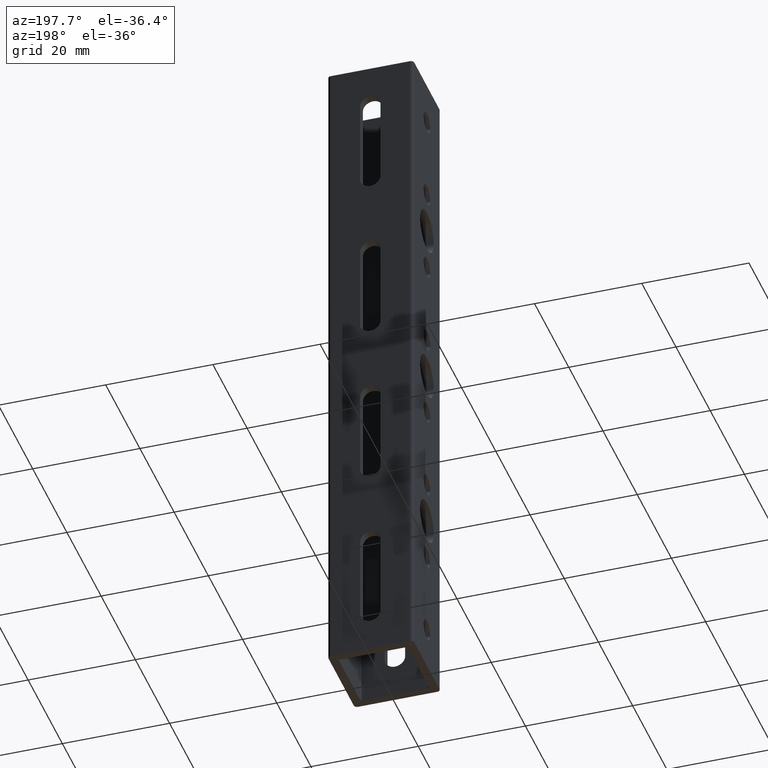
[diagram: clean part render]
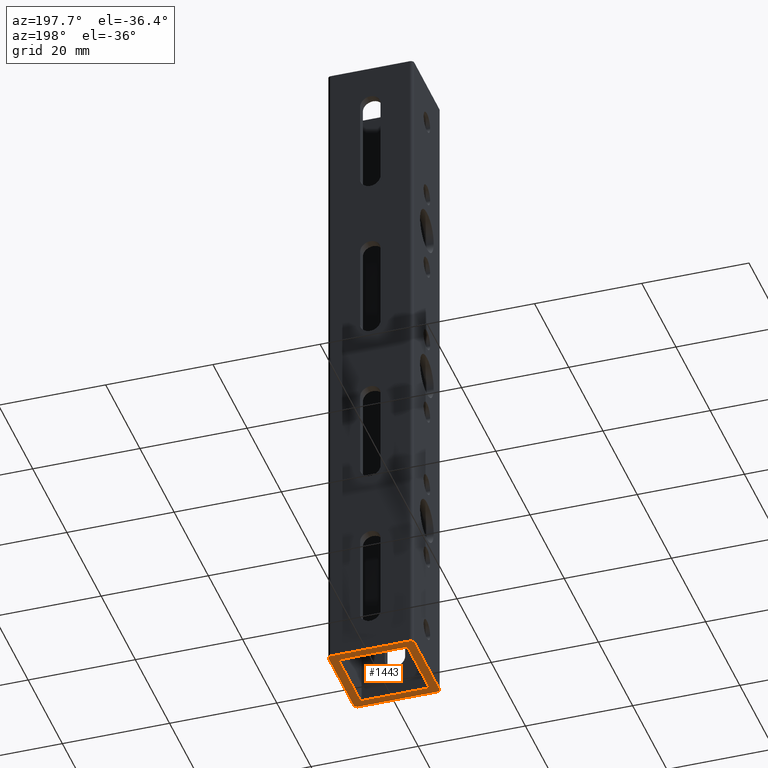
[diagram: same view with one face highlighted and labeled with its STEP entity id]
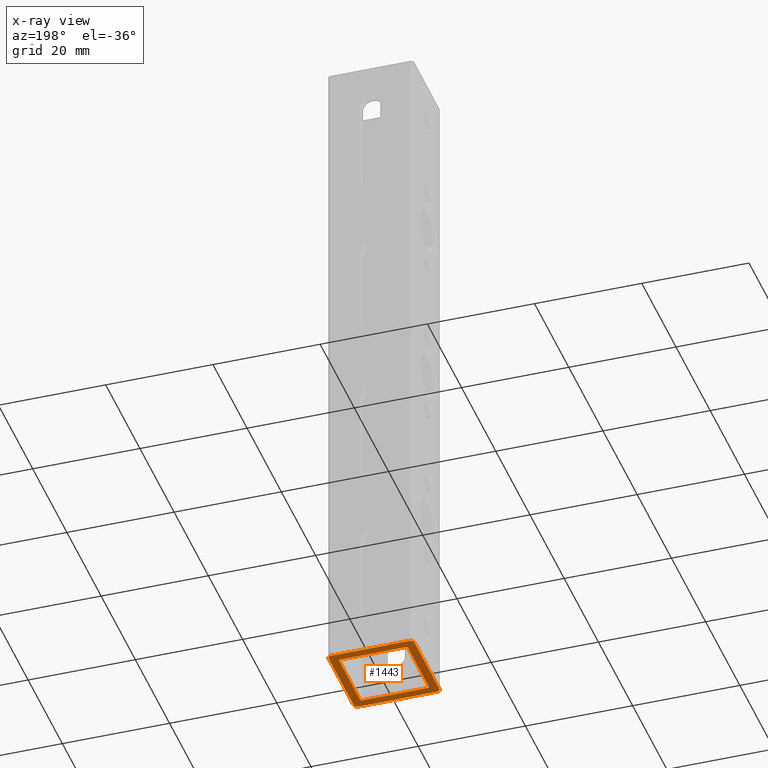
[diagram: x-ray of the same camera — body ghosted, the highlighted face saturated]
A machine part, auxiliary view. The second image highlights one B-rep face of the part: STEP entity #1443.
The next image is the same camera in x-ray: the body ghosted, the highlighted face saturated — about 0% of this face is hidden behind the body in this view.
In plain terms, the highlighted planar face has unit normal (0, -0, 1).
Its self-contained STEP definition (entity closure, byte-faithful):
#38 = AXIS2_PLACEMENT_3D ( 'NONE', #1860, #1848, #969 ) ;
#41 = DIRECTION ( 'NONE',  ( -0.0000000000000000000, 0.0000000000000000000, -1.000000000000000000 ) ) ;
#58 = AXIS2_PLACEMENT_3D ( 'NONE', #674, #2349, #942 ) ;
#66 = EDGE_CURVE ( 'NONE', #1537, #1940, #2310, .T. ) ;
#88 = VERTEX_POINT ( 'NONE', #728 ) ;
#142 = LINE ( 'NONE', #3443, #3061 ) ;
#201 = AXIS2_PLACEMENT_3D ( 'NONE', #1788, #3204, #1232 ) ;
#238 = VERTEX_POINT ( 'NONE', #2469 ) ;
#243 = LINE ( 'NONE', #3119, #1662 ) ;
#286 = FACE_BOUND ( 'NONE', #2107, .T. ) ;
#295 = ORIENTED_EDGE ( 'NONE', *, *, #3100, .T. ) ;
#308 = ORIENTED_EDGE ( 'NONE', *, *, #1360, .T. ) ;
#328 = DIRECTION ( 'NONE',  ( 1.000000000000000000, 0.0000000000000000000, 0.0000000000000000000 ) ) ;
#335 = CIRCLE ( 'NONE', #3227, 0.02500000000000000500 ) ;
#342 = ORIENTED_EDGE ( 'NONE', *, *, #973, .T. ) ;
#364 = DIRECTION ( 'NONE',  ( 0.0000000000000000000, -0.0000000000000000000, 1.000000000000000000 ) ) ;
#383 = FACE_OUTER_BOUND ( 'NONE', #3644, .T. ) ;
#403 = DIRECTION ( 'NONE',  ( 1.000000000000000000, 1.084202172485504300E-016, -0.0000000000000000000 ) ) ;
#473 = EDGE_CURVE ( 'NONE', #1010, #1713, #243, .T. ) ;
#513 = CARTESIAN_POINT ( 'NONE',  ( 0.2524606299212600000, -0.2524606299212598400, 0.0000000000000000000 ) ) ;
#531 = EDGE_CURVE ( 'NONE', #238, #1404, #820, .T. ) ;
#567 = ORIENTED_EDGE ( 'NONE', *, *, #2715, .T. ) ;
#575 = CARTESIAN_POINT ( 'NONE',  ( 0.2899606299212597000, 0.2899606299212598700, 0.0000000000000000000 ) ) ;
#654 = ORIENTED_EDGE ( 'NONE', *, *, #2348, .T. ) ;
#666 = CARTESIAN_POINT ( 'NONE',  ( -0.2524606299212598900, -0.2524606299212598400, 0.0000000000000000000 ) ) ;
#675 = EDGE_CURVE ( 'NONE', #88, #3026, #1169, .T. ) ;
#674 = CARTESIAN_POINT ( 'NONE',  ( -0.2424606299212599400, 0.2424606299212598800, 0.0000000000000000000 ) ) ;
#676 = VECTOR ( 'NONE', #2627, 39.37007874015748100 ) ;
#703 = EDGE_CURVE ( 'NONE', #3376, #1713, #335, .T. ) ;
#728 = CARTESIAN_POINT ( 'NONE',  ( -0.2899606299212599800, -0.3149606299212599500, 0.0000000000000000000 ) ) ;
#754 = LINE ( 'NONE', #666, #676 ) ;
#820 = CIRCLE ( 'NONE', #201, 0.009999999999999995000 ) ;
#831 = CARTESIAN_POINT ( 'NONE',  ( 0.3149606299212597300, -0.3149606299212598400, 0.0000000000000000000 ) ) ;
#858 = DIRECTION ( 'NONE',  ( 1.000000000000000000, 0.0000000000000000000, 0.0000000000000000000 ) ) ;
#942 = DIRECTION ( 'NONE',  ( 1.000000000000000000, 0.0000000000000000000, 0.0000000000000000000 ) ) ;
#969 = DIRECTION ( 'NONE',  ( 1.000000000000000000, 0.0000000000000000000, 0.0000000000000000000 ) ) ;
#973 = EDGE_CURVE ( 'NONE', #1304, #1318, #2437, .T. ) ;
#1000 = DIRECTION ( 'NONE',  ( -0.0000000000000000000, 0.0000000000000000000, -1.000000000000000000 ) ) ;
#1002 = CARTESIAN_POINT ( 'NONE',  ( 0.2424606299212600000, -0.2424606299212598600, 0.0000000000000000000 ) ) ;
#1010 = VERTEX_POINT ( 'NONE', #2899 ) ;
#1028 = EDGE_CURVE ( 'NONE', #1940, #1103, #2252, .T. ) ;
#1103 = VERTEX_POINT ( 'NONE', #3231 ) ;
#1119 = DIRECTION ( 'NONE',  ( 0.0000000000000000000, -0.0000000000000000000, 1.000000000000000000 ) ) ;
#1143 = ORIENTED_EDGE ( 'NONE', *, *, #3552, .T. ) ;
#1145 = AXIS2_PLACEMENT_3D ( 'NONE', #1736, #41, #2017 ) ;
#1169 = LINE ( 'NONE', #2078, #2566 ) ;
#1199 = DIRECTION ( 'NONE',  ( -1.000000000000000000, 0.0000000000000000000, 0.0000000000000000000 ) ) ;
#1232 = DIRECTION ( 'NONE',  ( 1.000000000000000000, 0.0000000000000000000, 0.0000000000000000000 ) ) ;
#1304 = VERTEX_POINT ( 'NONE', #3220 ) ;
#1318 = VERTEX_POINT ( 'NONE', #1814 ) ;
#1326 = DIRECTION ( 'NONE',  ( 1.000000000000000000, 0.0000000000000000000, -0.0000000000000000000 ) ) ;
#1339 = CIRCLE ( 'NONE', #1145, 0.02500000000000000500 ) ;
#1343 = EDGE_CURVE ( 'NONE', #88, #3478, #2958, .T. ) ;
#1360 = EDGE_CURVE ( 'NONE', #1404, #1537, #2121, .T. ) ;
#1368 = ORIENTED_EDGE ( 'NONE', *, *, #1463, .F. ) ;
#1390 = CARTESIAN_POINT ( 'NONE',  ( 0.3149606299212597300, -0.2899606299212598700, 0.0000000000000000000 ) ) ;
#1404 = VERTEX_POINT ( 'NONE', #2455 ) ;
#1443 = ADVANCED_FACE ( 'NONE', ( #383, #286 ), #3038, .F. ) ;
#1450 = ORIENTED_EDGE ( 'NONE', *, *, #703, .T. ) ;
#1463 = EDGE_CURVE ( 'NONE', #2236, #2113, #2350, .T. ) ;
#1479 = AXIS2_PLACEMENT_3D ( 'NONE', #1002, #2955, #3252 ) ;
#1500 = DIRECTION ( 'NONE',  ( 0.0000000000000000000, 1.000000000000000000, 0.0000000000000000000 ) ) ;
#1511 = VECTOR ( 'NONE', #1500, 39.37007874015748100 ) ;
#1537 = VERTEX_POINT ( 'NONE', #2196 ) ;
#1570 = DIRECTION ( 'NONE',  ( 1.000000000000000000, -0.0000000000000000000, -0.0000000000000000000 ) ) ;
#1604 = VECTOR ( 'NONE', #2222, 39.37007874015748100 ) ;
#1628 = CARTESIAN_POINT ( 'NONE',  ( 0.3149606299212597300, 0.2899606299212598700, 0.0000000000000000000 ) ) ;
#1662 = VECTOR ( 'NONE', #3378, 39.37007874015748100 ) ;
#1685 = CARTESIAN_POINT ( 'NONE',  ( 0.0000000000000000000, 0.0000000000000000000, 0.0000000000000000000 ) ) ;
#1713 = VERTEX_POINT ( 'NONE', #1803 ) ;
#1736 = CARTESIAN_POINT ( 'NONE',  ( 0.2899606299212597000, -0.2899606299212598700, 0.0000000000000000000 ) ) ;
#1780 = VECTOR ( 'NONE', #1956, 39.37007874015748100 ) ;
#1788 = CARTESIAN_POINT ( 'NONE',  ( -0.2424606299212599100, -0.2424606299212598600, 0.0000000000000000000 ) ) ;
#1798 = ORIENTED_EDGE ( 'NONE', *, *, #2237, .F. ) ;
#1803 = CARTESIAN_POINT ( 'NONE',  ( -0.2899606299212599800, 0.3149606299212598400, 0.0000000000000000000 ) ) ;
#1806 = ORIENTED_EDGE ( 'NONE', *, *, #3134, .T. ) ;
#1814 = CARTESIAN_POINT ( 'NONE',  ( -0.2524606299212598900, 0.2424606299212598800, 0.0000000000000000000 ) ) ;
#1848 = DIRECTION ( 'NONE',  ( -0.0000000000000000000, 0.0000000000000000000, -1.000000000000000000 ) ) ;
#1860 = CARTESIAN_POINT ( 'NONE',  ( -0.2899606299212599800, -0.2899606299212599300, 0.0000000000000000000 ) ) ;
#1904 = CARTESIAN_POINT ( 'NONE',  ( 0.2424606299212600000, 0.2524606299212598900, 0.0000000000000000000 ) ) ;
#1930 = ORIENTED_EDGE ( 'NONE', *, *, #531, .T. ) ;
#1940 = VERTEX_POINT ( 'NONE', #2363 ) ;
#1949 = CARTESIAN_POINT ( 'NONE',  ( -0.3149606299212600000, -0.2899606299212599300, 0.0000000000000000000 ) ) ;
#1956 = DIRECTION ( 'NONE',  ( -0.0000000000000000000, -1.000000000000000000, -0.0000000000000000000 ) ) ;
#1968 = AXIS2_PLACEMENT_3D ( 'NONE', #2042, #364, #2312 ) ;
#1980 = VERTEX_POINT ( 'NONE', #1904 ) ;
#2017 = DIRECTION ( 'NONE',  ( 1.000000000000000000, 0.0000000000000000000, 0.0000000000000000000 ) ) ;
#2042 = CARTESIAN_POINT ( 'NONE',  ( 0.2424606299212600000, 0.2424606299212598800, 0.0000000000000000000 ) ) ;
#2078 = CARTESIAN_POINT ( 'NONE',  ( 0.3149606299212597300, -0.3149606299212598400, 0.0000000000000000000 ) ) ;
#2107 = EDGE_LOOP ( 'NONE', ( #567, #342, #1806, #1930, #308, #3090, #2729, #295 ) ) ;
#2113 = VERTEX_POINT ( 'NONE', #1628 ) ;
#2121 = LINE ( 'NONE', #3544, #3532 ) ;
#2159 = CARTESIAN_POINT ( 'NONE',  ( -0.3149606299212600000, 0.2899606299212598700, 0.0000000000000000000 ) ) ;
#2196 = CARTESIAN_POINT ( 'NONE',  ( 0.2424606299212600000, -0.2524606299212598400, 0.0000000000000000000 ) ) ;
#2222 = DIRECTION ( 'NONE',  ( 0.0000000000000000000, 1.000000000000000000, 0.0000000000000000000 ) ) ;
#2236 = VERTEX_POINT ( 'NONE', #1390 ) ;
#2237 = EDGE_CURVE ( 'NONE', #3376, #3478, #3270, .T. ) ;
#2244 = CIRCLE ( 'NONE', #1968, 0.009999999999999995000 ) ;
#2252 = LINE ( 'NONE', #513, #1511 ) ;
#2310 = CIRCLE ( 'NONE', #1479, 0.009999999999999995000 ) ;
#2312 = DIRECTION ( 'NONE',  ( 1.000000000000000000, 0.0000000000000000000, 0.0000000000000000000 ) ) ;
#2348 = EDGE_CURVE ( 'NONE', #2236, #3026, #1339, .T. ) ;
#2349 = DIRECTION ( 'NONE',  ( 0.0000000000000000000, -0.0000000000000000000, 1.000000000000000000 ) ) ;
#2350 = LINE ( 'NONE', #831, #1604 ) ;
#2363 = CARTESIAN_POINT ( 'NONE',  ( 0.2524606299212600000, -0.2424606299212598600, 0.0000000000000000000 ) ) ;
#2368 = ORIENTED_EDGE ( 'NONE', *, *, #473, .F. ) ;
#2437 = CIRCLE ( 'NONE', #58, 0.009999999999999995000 ) ;
#2455 = CARTESIAN_POINT ( 'NONE',  ( -0.2424606299212599400, -0.2524606299212598400, 0.0000000000000000000 ) ) ;
#2469 = CARTESIAN_POINT ( 'NONE',  ( -0.2524606299212598900, -0.2424606299212598600, 0.0000000000000000000 ) ) ;
#2500 = AXIS2_PLACEMENT_3D ( 'NONE', #1685, #1119, #1326 ) ;
#2535 = DIRECTION ( 'NONE',  ( -0.0000000000000000000, 0.0000000000000000000, -1.000000000000000000 ) ) ;
#2566 = VECTOR ( 'NONE', #403, 39.37007874015748100 ) ;
#2568 = ORIENTED_EDGE ( 'NONE', *, *, #675, .F. ) ;
#2573 = AXIS2_PLACEMENT_3D ( 'NONE', #575, #2535, #858 ) ;
#2627 = DIRECTION ( 'NONE',  ( -0.0000000000000000000, -1.000000000000000000, -0.0000000000000000000 ) ) ;
#2715 = EDGE_CURVE ( 'NONE', #1980, #1304, #142, .T. ) ;
#2729 = ORIENTED_EDGE ( 'NONE', *, *, #1028, .T. ) ;
#2899 = CARTESIAN_POINT ( 'NONE',  ( 0.2899606299212597000, 0.3149606299212598400, 0.0000000000000000000 ) ) ;
#2938 = CARTESIAN_POINT ( 'NONE',  ( -0.2899606299212599800, 0.2899606299212598700, 0.0000000000000000000 ) ) ;
#2955 = DIRECTION ( 'NONE',  ( 0.0000000000000000000, -0.0000000000000000000, 1.000000000000000000 ) ) ;
#2958 = CIRCLE ( 'NONE', #38, 0.02500000000000000500 ) ;
#3026 = VERTEX_POINT ( 'NONE', #3032 ) ;
#3032 = CARTESIAN_POINT ( 'NONE',  ( 0.2899606299212597000, -0.3149606299212598400, 0.0000000000000000000 ) ) ;
#3038 = PLANE ( 'NONE',  #2500 ) ;
#3061 = VECTOR ( 'NONE', #1199, 39.37007874015748100 ) ;
#3083 = CARTESIAN_POINT ( 'NONE',  ( -0.3149606299212600000, -0.3149606299212599500, 0.0000000000000000000 ) ) ;
#3090 = ORIENTED_EDGE ( 'NONE', *, *, #66, .T. ) ;
#3094 = CIRCLE ( 'NONE', #2573, 0.02500000000000000500 ) ;
#3100 = EDGE_CURVE ( 'NONE', #1103, #1980, #2244, .T. ) ;
#3119 = CARTESIAN_POINT ( 'NONE',  ( 0.3149606299212597300, 0.3149606299212598400, 0.0000000000000000000 ) ) ;
#3134 = EDGE_CURVE ( 'NONE', #1318, #238, #754, .T. ) ;
#3204 = DIRECTION ( 'NONE',  ( 0.0000000000000000000, -0.0000000000000000000, 1.000000000000000000 ) ) ;
#3220 = CARTESIAN_POINT ( 'NONE',  ( -0.2424606299212599400, 0.2524606299212598900, 0.0000000000000000000 ) ) ;
#3227 = AXIS2_PLACEMENT_3D ( 'NONE', #2938, #1000, #328 ) ;
#3231 = CARTESIAN_POINT ( 'NONE',  ( 0.2524606299212600000, 0.2424606299212598800, 0.0000000000000000000 ) ) ;
#3252 = DIRECTION ( 'NONE',  ( 1.000000000000000000, 0.0000000000000000000, 0.0000000000000000000 ) ) ;
#3270 = LINE ( 'NONE', #3083, #1780 ) ;
#3376 = VERTEX_POINT ( 'NONE', #2159 ) ;
#3378 = DIRECTION ( 'NONE',  ( -1.000000000000000000, 0.0000000000000000000, 0.0000000000000000000 ) ) ;
#3443 = CARTESIAN_POINT ( 'NONE',  ( 0.2524606299212600000, 0.2524606299212598900, 0.0000000000000000000 ) ) ;
#3478 = VERTEX_POINT ( 'NONE', #1949 ) ;
#3532 = VECTOR ( 'NONE', #1570, 39.37007874015748100 ) ;
#3544 = CARTESIAN_POINT ( 'NONE',  ( 0.2524606299212600000, -0.2524606299212598400, 0.0000000000000000000 ) ) ;
#3552 = EDGE_CURVE ( 'NONE', #1010, #2113, #3094, .T. ) ;
#3605 = ORIENTED_EDGE ( 'NONE', *, *, #1343, .T. ) ;
#3644 = EDGE_LOOP ( 'NONE', ( #2368, #1143, #1368, #654, #2568, #3605, #1798, #1450 ) ) ;